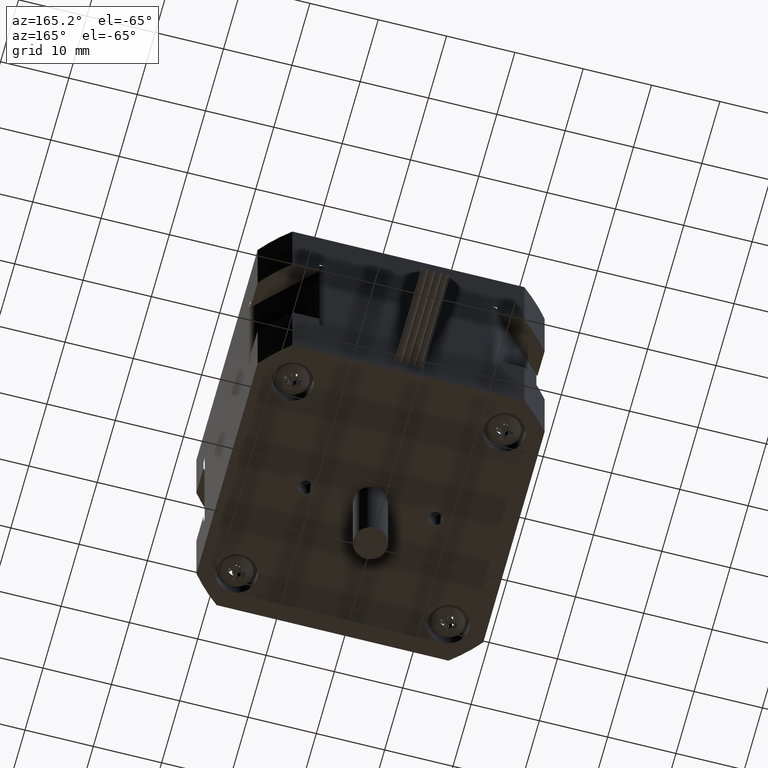
[diagram: clean part render]
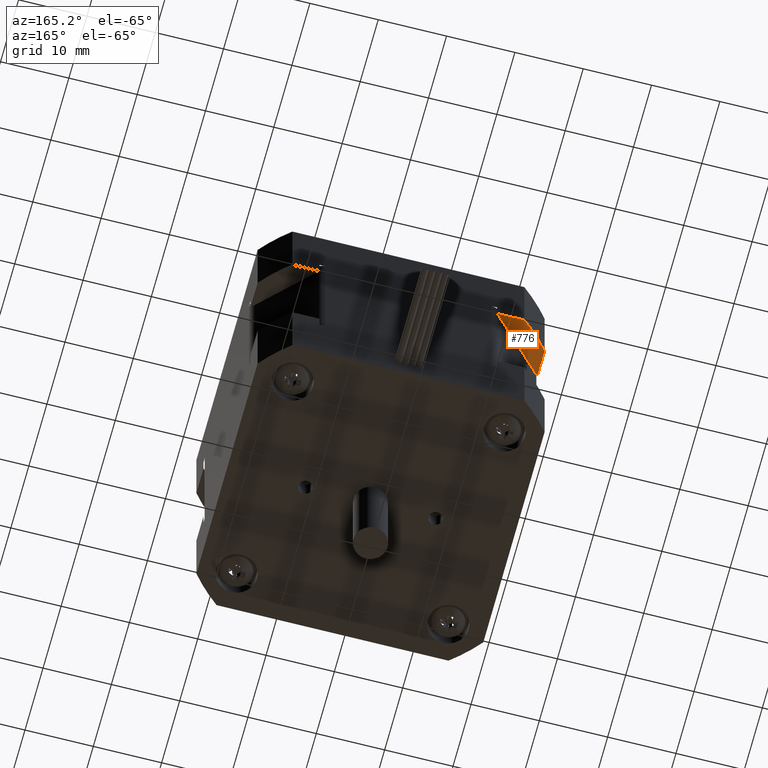
[diagram: same view with one face highlighted and labeled with its STEP entity id]
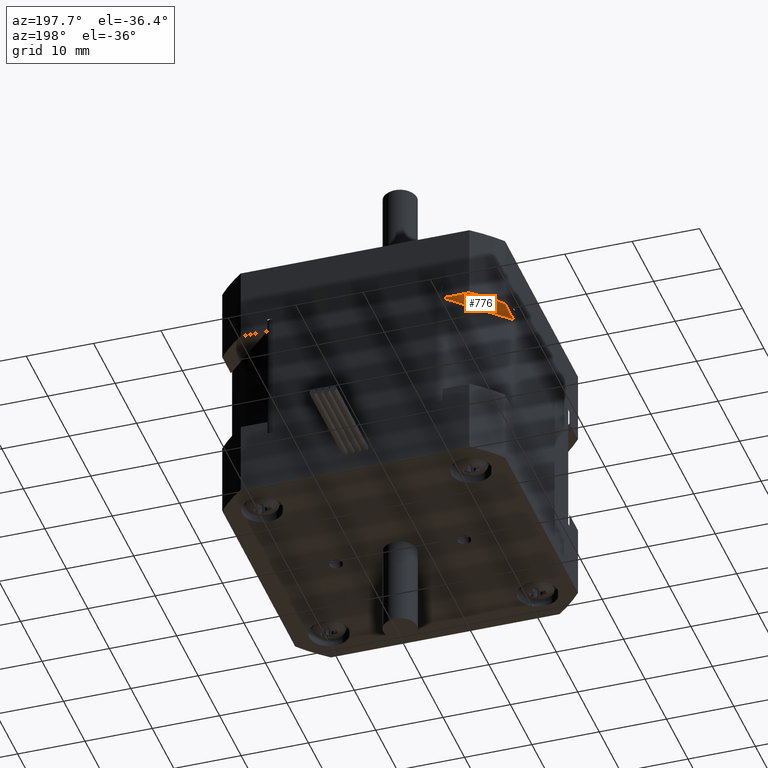
[diagram: same view with one face highlighted and labeled with its STEP entity id]
A machine part, auxiliary view. The second image highlights one B-rep face of the part: STEP entity #776.
A second angle (auxiliary view) of the same face is appended — the face is thin or edge-on in the first view.
In plain terms, the highlighted planar face has unit normal (0, 0, 1).
Its self-contained STEP definition (entity closure, byte-faithful):
#736=CARTESIAN_POINT('',(1.110223E-015,3.571494E-015,13.250000000000009));
#737=DIRECTION('',(0.0,0.0,1.0));
#738=DIRECTION('',(1.0,0.0,0.0));
#739=AXIS2_PLACEMENT_3D('',#736,#737,#738);
#740=PLANE('',#739);
#741=CARTESIAN_POINT('',(-12.999999999999982,21.000000000000018,13.250000000000009));
#742=VERTEX_POINT('',#741);
#743=CARTESIAN_POINT('',(-21.000000000000011,12.999999999999996,13.250000000000009));
#744=VERTEX_POINT('',#743);
#745=CARTESIAN_POINT('',(-12.999999999999982,21.000000000000018,13.250000000000009));
#746=DIRECTION('',(-0.707106781186547,-0.707106781186548,0.0));
#747=VECTOR('',#746,11.313708498984795);
#748=LINE('',#745,#747);
#749=EDGE_CURVE('',#742,#744,#748,.T.);
#750=ORIENTED_EDGE('',*,*,#749,.T.);
#751=CARTESIAN_POINT('',(-21.000000000000011,16.970562748477139,13.250000000000009));
#752=VERTEX_POINT('',#751);
#753=CARTESIAN_POINT('',(-21.000000000000011,16.970562748477139,13.250000000000009));
#754=DIRECTION('',(0.0,-1.0,0.0));
#755=VECTOR('',#754,3.970562748477144);
#756=LINE('',#753,#755);
#757=EDGE_CURVE('',#752,#744,#756,.T.);
#758=ORIENTED_EDGE('',*,*,#757,.F.);
#759=CARTESIAN_POINT('',(-16.970562748477146,21.0,13.250000000000009));
#760=VERTEX_POINT('',#759);
#761=CARTESIAN_POINT('',(-1.403331E-048,1.282081E-033,13.250000000000009));
#762=DIRECTION('',(1.253526E-033,-1.551160E-033,1.0));
#763=DIRECTION('',(-0.628539361054709,0.777777777777778,1.994348E-033));
#764=AXIS2_PLACEMENT_3D('',#761,#762,#763);
#765=CIRCLE('',#764,27.0);
#766=EDGE_CURVE('',#760,#752,#765,.T.);
#767=ORIENTED_EDGE('',*,*,#766,.F.);
#768=CARTESIAN_POINT('',(-12.999999999999982,21.000000000000018,13.250000000000009));
#769=DIRECTION('',(-1.0,0.0,0.0));
#770=VECTOR('',#769,3.970562748477164);
#771=LINE('',#768,#770);
#772=EDGE_CURVE('',#742,#760,#771,.T.);
#773=ORIENTED_EDGE('',*,*,#772,.F.);
#774=EDGE_LOOP('',(#750,#758,#767,#773));
#775=FACE_OUTER_BOUND('',#774,.T.);
#776=ADVANCED_FACE('',(#775),#740,.F.);